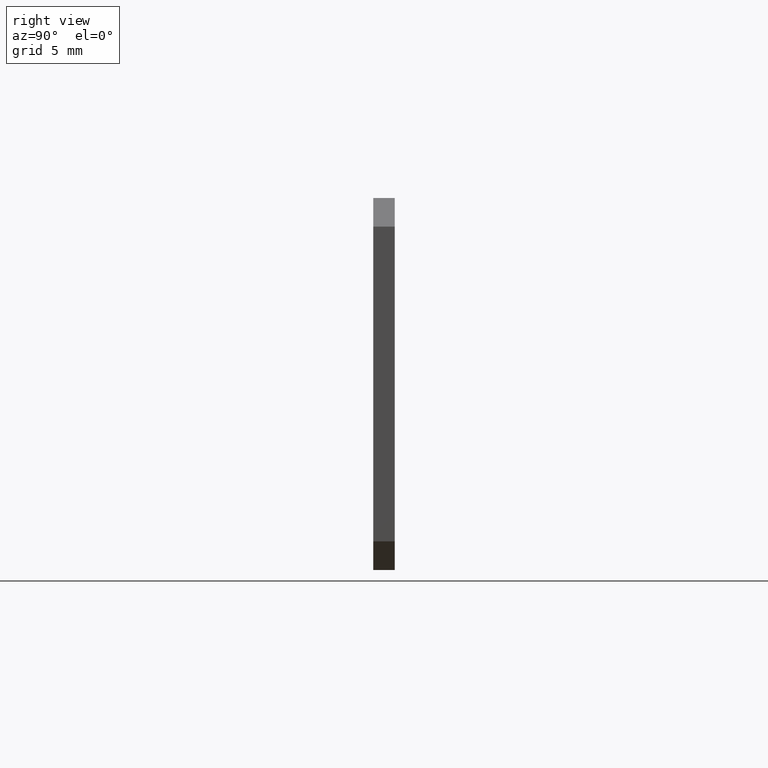
[diagram: clean part render]
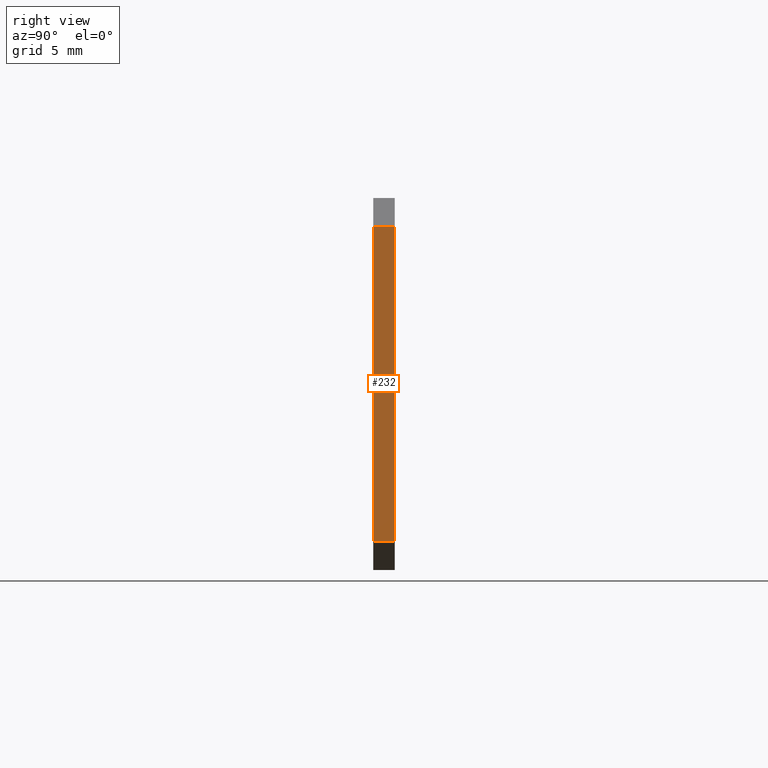
[diagram: same view with one face highlighted and labeled with its STEP entity id]
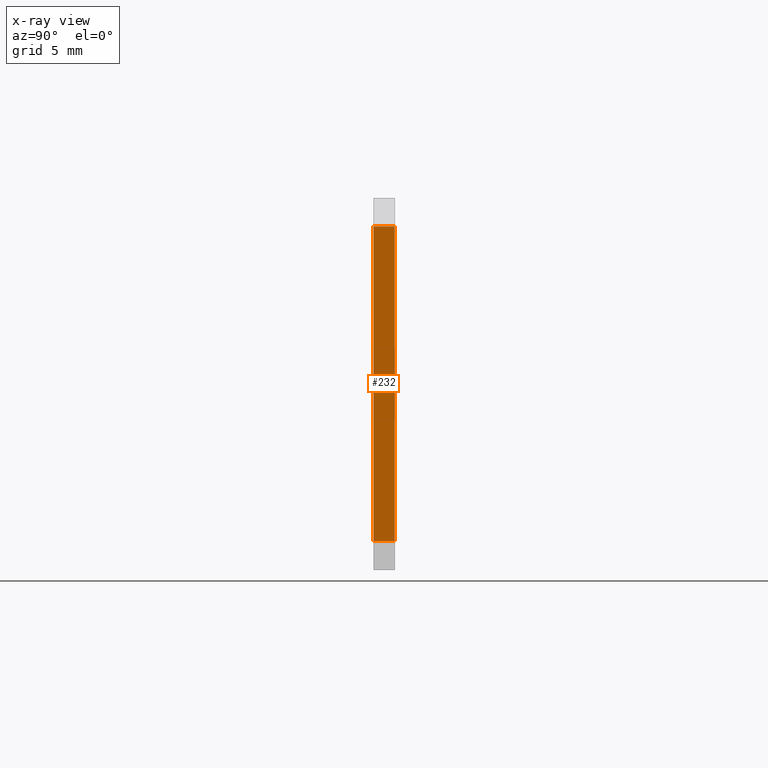
[diagram: x-ray of the same camera — body ghosted, the highlighted face saturated]
A machine part, right view. The second image highlights one B-rep face of the part: STEP entity #232.
The next image is the same camera in x-ray: the body ghosted, the highlighted face saturated — about 0% of this face is hidden behind the body in this view.
In plain terms, the highlighted planar face has unit normal (-1, 0, 0).
Its self-contained STEP definition (entity closure, byte-faithful):
#16 = VERTEX_POINT ( 'NONE', #192 ) ;
#18 = VERTEX_POINT ( 'NONE', #187 ) ;
#37 = EDGE_CURVE ( 'NONE', #18, #16, #166, .T. ) ;
#64 = ORIENTED_EDGE ( 'NONE', *, *, #37, .F. ) ;
#65 = ORIENTED_EDGE ( 'NONE', *, *, #125, .T. ) ;
#73 = VERTEX_POINT ( 'NONE', #255 ) ;
#75 = EDGE_CURVE ( 'NONE', #76, #73, #253, .T. ) ;
#76 = VERTEX_POINT ( 'NONE', #299 ) ;
#125 = EDGE_CURVE ( 'NONE', #18, #76, #464, .T. ) ;
#163 = DIRECTION ( 'NONE',  ( -3.154042683594193100E-016, 0.0000000000000000000, -1.000000000000000000 ) ) ;
#164 = VECTOR ( 'NONE', #163, 1000.000000000000000 ) ;
#165 = CARTESIAN_POINT ( 'NONE',  ( 22.00000000000000700, 1.500000000000000000, 11.00000000000000500 ) ) ;
#166 = LINE ( 'NONE', #165, #164 ) ;
#187 = CARTESIAN_POINT ( 'NONE',  ( 22.00000000000000700, 1.500000000000000000, 11.00000000000000500 ) ) ;
#192 = CARTESIAN_POINT ( 'NONE',  ( 22.00000000000000000, 1.500000000000000000, -11.00000000000001100 ) ) ;
#232 = ADVANCED_FACE ( 'NONE', ( #393 ), #391, .F. ) ;
#233 = EDGE_LOOP ( 'NONE', ( #234, #235, #64, #65 ) ) ;
#234 = ORIENTED_EDGE ( 'NONE', *, *, #75, .T. ) ;
#235 = ORIENTED_EDGE ( 'NONE', *, *, #236, .F. ) ;
#236 = EDGE_CURVE ( 'NONE', #16, #73, #392, .T. ) ;
#245 = CARTESIAN_POINT ( 'NONE',  ( 22.00000000000000700, 0.0000000000000000000, 11.00000000000000500 ) ) ;
#250 = VECTOR ( 'NONE', #251, 1000.000000000000000 ) ;
#251 = DIRECTION ( 'NONE',  ( -3.154042683594193100E-016, 0.0000000000000000000, -1.000000000000000000 ) ) ;
#253 = LINE ( 'NONE', #245, #250 ) ;
#255 = CARTESIAN_POINT ( 'NONE',  ( 22.00000000000000000, 0.0000000000000000000, -11.00000000000001100 ) ) ;
#299 = CARTESIAN_POINT ( 'NONE',  ( 22.00000000000000700, 0.0000000000000000000, 11.00000000000000500 ) ) ;
#384 = DIRECTION ( 'NONE',  ( -0.0000000000000000000, -1.000000000000000000, -0.0000000000000000000 ) ) ;
#385 = VECTOR ( 'NONE', #384, 1000.000000000000000 ) ;
#386 = CARTESIAN_POINT ( 'NONE',  ( 22.00000000000000000, 1.500000000000000000, -11.00000000000001100 ) ) ;
#387 = DIRECTION ( 'NONE',  ( 3.154042683594193100E-016, 0.0000000000000000000, 1.000000000000000000 ) ) ;
#388 = DIRECTION ( 'NONE',  ( -1.000000000000000000, 0.0000000000000000000, 3.154042683594193100E-016 ) ) ;
#389 = CARTESIAN_POINT ( 'NONE',  ( 22.00000000000000700, 1.500000000000000000, 11.00000000000000500 ) ) ;
#390 = AXIS2_PLACEMENT_3D ( 'NONE', #389, #388, #387 ) ;
#391 = PLANE ( 'NONE',  #390 ) ;
#392 = LINE ( 'NONE', #386, #385 ) ;
#393 = FACE_OUTER_BOUND ( 'NONE', #233, .T. ) ;
#461 = DIRECTION ( 'NONE',  ( -0.0000000000000000000, -1.000000000000000000, -0.0000000000000000000 ) ) ;
#462 = VECTOR ( 'NONE', #461, 1000.000000000000000 ) ;
#463 = CARTESIAN_POINT ( 'NONE',  ( 22.00000000000000700, 1.500000000000000000, 11.00000000000000500 ) ) ;
#464 = LINE ( 'NONE', #463, #462 ) ;